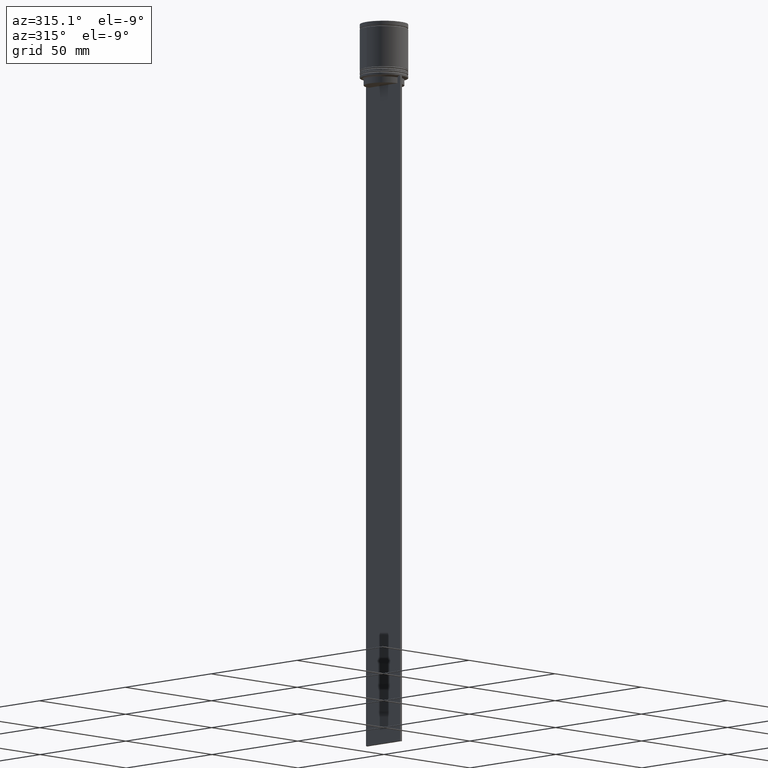
[diagram: clean part render]
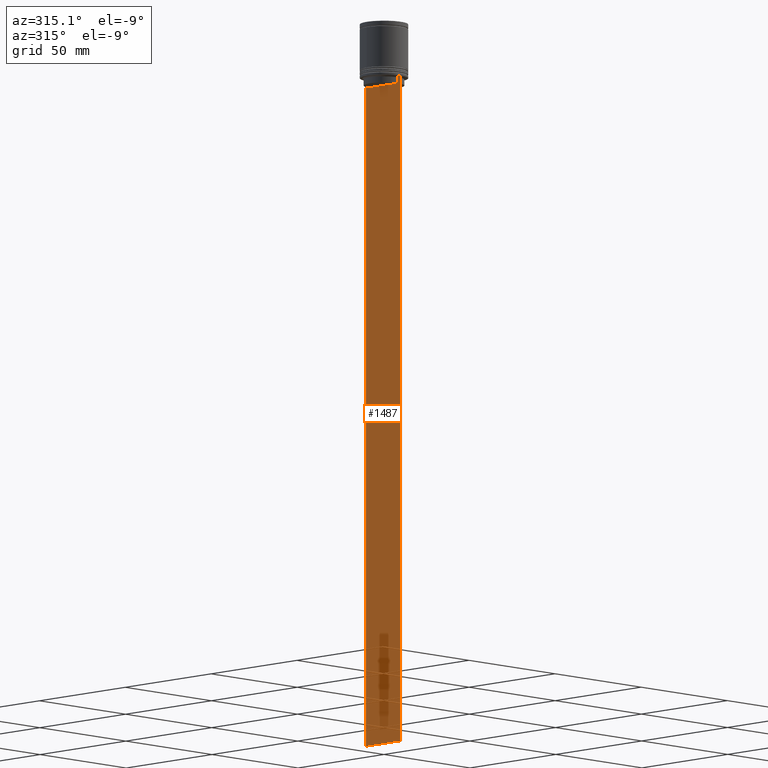
[diagram: same view with one face highlighted and labeled with its STEP entity id]
A machine part, auxiliary view. The second image highlights one B-rep face of the part: STEP entity #1487.
In plain terms, the highlighted planar face has unit normal (-1, 0, 0).
Its self-contained STEP definition (entity closure, byte-faithful):
#16 = DIRECTION ( 'NONE',  ( 0.000000000000000000, 0.000000000000000000, -1.000000000000000000 ) ) ;
#41 = LINE ( 'NONE', #1626, #1650 ) ;
#68 = CARTESIAN_POINT ( 'NONE',  ( -0.5000000000000000000, -10.00000000000000178, -22.50000000000000000 ) ) ;
#116 = CARTESIAN_POINT ( 'NONE',  ( -0.5000000000000000000, -8.885943956609226646, -22.50000000000000000 ) ) ;
#135 = ORIENTED_EDGE ( 'NONE', *, *, #1676, .F. ) ;
#172 = VECTOR ( 'NONE', #1026, 1000.000000000000000 ) ;
#179 = B_SPLINE_CURVE_WITH_KNOTS ( 'NONE', 3,
 ( #1228, #903, #1550, #116 ),
 .UNSPECIFIED., .F., .F.,
 ( 4, 4 ),
 ( 0.03898465126933125385, 0.03969388910599652709 ),
 .UNSPECIFIED. ) ;
#181 = ORIENTED_EDGE ( 'NONE', *, *, #1738, .F. ) ;
#218 = CARTESIAN_POINT ( 'NONE',  ( -0.5000000000000000000, 8.400000000000000355, -25.50000000000000000 ) ) ;
#220 = EDGE_CURVE ( 'NONE', #843, #1821, #1020, .T. ) ;
#223 = CARTESIAN_POINT ( 'NONE',  ( -0.5000000000000000000, -10.00000000000000178, -22.50000000000000000 ) ) ;
#234 = VECTOR ( 'NONE', #1152, 1000.000000000000000 ) ;
#236 = VECTOR ( 'NONE', #239, 1000.000000000000000 ) ;
#239 = DIRECTION ( 'NONE',  ( 0.000000000000000000, -1.000000000000000000, 0.000000000000000000 ) ) ;
#245 = EDGE_CURVE ( 'NONE', #1821, #939, #1907, .T. ) ;
#256 = ORIENTED_EDGE ( 'NONE', *, *, #1297, .F. ) ;
#268 = CARTESIAN_POINT ( 'NONE',  ( -0.5000000000000000000, -10.00000000000000178, -299.5000000000000568 ) ) ;
#286 = CARTESIAN_POINT ( 'NONE',  ( -0.5000000000000000000, 8.385105843100610912, -23.00000000000000000 ) ) ;
#301 = CARTESIAN_POINT ( 'NONE',  ( -0.5000000000000000000, -8.885943956609226646, -22.50000000000000000 ) ) ;
#321 = ORIENTED_EDGE ( 'NONE', *, *, #220, .F. ) ;
#359 = EDGE_CURVE ( 'NONE', #1977, #843, #502, .T. ) ;
#389 = EDGE_CURVE ( 'NONE', #1177, #1277, #666, .T. ) ;
#421 = CARTESIAN_POINT ( 'NONE',  ( -0.5000000000000000000, 8.385105843100610912, -23.00000000000000000 ) ) ;
#502 = LINE ( 'NONE', #223, #1408 ) ;
#504 = VECTOR ( 'NONE', #862, 1000.000000000000000 ) ;
#514 = VERTEX_POINT ( 'NONE', #743 ) ;
#522 = EDGE_LOOP ( 'NONE', ( #321, #1180, #135, #1094, #1077, #554, #1282, #256, #590, #181, #1442, #942 ) ) ;
#535 = LINE ( 'NONE', #731, #172 ) ;
#554 = ORIENTED_EDGE ( 'NONE', *, *, #1231, .F. ) ;
#575 = VECTOR ( 'NONE', #1571, 1000.000000000000000 ) ;
#579 = LINE ( 'NONE', #218, #236 ) ;
#590 = ORIENTED_EDGE ( 'NONE', *, *, #595, .F. ) ;
#595 = EDGE_CURVE ( 'NONE', #514, #1469, #179, .T. ) ;
#611 = PLANE ( 'NONE',  #1003 ) ;
#638 = DIRECTION ( 'NONE',  ( 0.000000000000000000, 0.000000000000000000, -1.000000000000000000 ) ) ;
#657 = CARTESIAN_POINT ( 'NONE',  ( -0.5000000000000000000, -10.00000000000000178, -2.475015605499213844 ) ) ;
#660 = CARTESIAN_POINT ( 'NONE',  ( -0.5000000000000000000, 8.552060201981374732, -22.83334167021640582 ) ) ;
#666 = LINE ( 'NONE', #68, #504 ) ;
#681 = CARTESIAN_POINT ( 'NONE',  ( -0.5000000000000000000, -9.887365675446622149, -22.50000000000000000 ) ) ;
#731 = CARTESIAN_POINT ( 'NONE',  ( -0.5000000000000000000, -8.385105843100610912, 0.000000000000000000 ) ) ;
#743 = CARTESIAN_POINT ( 'NONE',  ( -0.5000000000000000000, -8.385105843100610912, -23.00000000000000000 ) ) ;
#785 = CARTESIAN_POINT ( 'NONE',  ( -0.5000000000000000000, 8.385105843100610912, 0.000000000000000000 ) ) ;
#805 = CARTESIAN_POINT ( 'NONE',  ( -0.5000000000000000000, 8.719005771582342135, -22.66667453442325098 ) ) ;
#810 = LINE ( 'NONE', #1456, #1953 ) ;
#829 = LINE ( 'NONE', #657, #234 ) ;
#843 = VERTEX_POINT ( 'NONE', #1153 ) ;
#862 = DIRECTION ( 'NONE',  ( 0.000000000000000000, -1.000000000000000000, 0.000000000000000000 ) ) ;
#903 = CARTESIAN_POINT ( 'NONE',  ( -0.5000000000000000000, -8.552060194457768105, -22.83334167772666845 ) ) ;
#924 = DIRECTION ( 'NONE',  ( 0.000000000000000000, 0.000000000000000000, 1.000000000000000000 ) ) ;
#928 = VERTEX_POINT ( 'NONE', #1361 ) ;
#939 = VERTEX_POINT ( 'NONE', #1871 ) ;
#942 = ORIENTED_EDGE ( 'NONE', *, *, #245, .F. ) ;
#986 = DIRECTION ( 'NONE',  ( 0.000000000000000000, -1.000000000000000000, 0.000000000000000000 ) ) ;
#1003 = AXIS2_PLACEMENT_3D ( 'NONE', #1901, #1731, #924 ) ;
#1020 = B_SPLINE_CURVE_WITH_KNOTS ( 'NONE', 3,
 ( #1092, #805, #660, #286 ),
 .UNSPECIFIED., .F., .F.,
 ( 4, 4 ),
 ( 0.01511546479386905242, 0.01582316445439076874 ),
 .UNSPECIFIED. ) ;
#1026 = DIRECTION ( 'NONE',  ( -0.000000000000000000, -0.000000000000000000, 1.000000000000000000 ) ) ;
#1077 = ORIENTED_EDGE ( 'NONE', *, *, #1531, .F. ) ;
#1092 = CARTESIAN_POINT ( 'NONE',  ( -0.5000000000000000000, 8.885943956609226646, -22.50000000000000000 ) ) ;
#1094 = ORIENTED_EDGE ( 'NONE', *, *, #1222, .T. ) ;
#1124 = CARTESIAN_POINT ( 'NONE',  ( -0.5000000000000000000, 9.999999999999998224, -299.5000000000000568 ) ) ;
#1145 = CARTESIAN_POINT ( 'NONE',  ( -0.5000000000000000000, -10.00000000000000178, -22.50000000000000000 ) ) ;
#1152 = DIRECTION ( 'NONE',  ( 0.000000000000000000, 0.000000000000000000, -1.000000000000000000 ) ) ;
#1153 = CARTESIAN_POINT ( 'NONE',  ( -0.5000000000000000000, 8.885943956609226646, -22.50000000000000000 ) ) ;
#1177 = VERTEX_POINT ( 'NONE', #681 ) ;
#1180 = ORIENTED_EDGE ( 'NONE', *, *, #359, .F. ) ;
#1185 = VERTEX_POINT ( 'NONE', #1301 ) ;
#1222 = EDGE_CURVE ( 'NONE', #928, #1278, #1321, .T. ) ;
#1228 = CARTESIAN_POINT ( 'NONE',  ( -0.5000000000000000000, -8.385105843100610912, -23.00000000000000000 ) ) ;
#1231 = EDGE_CURVE ( 'NONE', #1277, #1367, #829, .T. ) ;
#1277 = VERTEX_POINT ( 'NONE', #1145 ) ;
#1278 = VERTEX_POINT ( 'NONE', #1124 ) ;
#1282 = ORIENTED_EDGE ( 'NONE', *, *, #389, .F. ) ;
#1286 = CARTESIAN_POINT ( 'NONE',  ( -0.5000000000000000000, 9.887365675446622149, -22.50000000000000000 ) ) ;
#1297 = EDGE_CURVE ( 'NONE', #1469, #1177, #810, .T. ) ;
#1301 = CARTESIAN_POINT ( 'NONE',  ( -0.5000000000000000000, -8.385105843100610912, -25.50000000000000000 ) ) ;
#1321 = LINE ( 'NONE', #1619, #1345 ) ;
#1336 = DIRECTION ( 'NONE',  ( 0.000000000000000000, -1.000000000000000000, 0.000000000000000000 ) ) ;
#1345 = VECTOR ( 'NONE', #16, 1000.000000000000000 ) ;
#1361 = CARTESIAN_POINT ( 'NONE',  ( -0.5000000000000000000, 9.999999999999994671, -22.50000000000000000 ) ) ;
#1367 = VERTEX_POINT ( 'NONE', #1532 ) ;
#1405 = EDGE_CURVE ( 'NONE', #939, #1185, #579, .T. ) ;
#1408 = VECTOR ( 'NONE', #1336, 1000.000000000000000 ) ;
#1423 = FACE_OUTER_BOUND ( 'NONE', #522, .T. ) ;
#1442 = ORIENTED_EDGE ( 'NONE', *, *, #1405, .F. ) ;
#1456 = CARTESIAN_POINT ( 'NONE',  ( -0.5000000000000000000, -10.00000000000000178, -22.50000000000000000 ) ) ;
#1469 = VERTEX_POINT ( 'NONE', #301 ) ;
#1487 = ADVANCED_FACE ( 'NONE', ( #1423 ), #611, .T. ) ;
#1531 = EDGE_CURVE ( 'NONE', #1367, #1278, #1562, .T. ) ;
#1532 = CARTESIAN_POINT ( 'NONE',  ( -0.5000000000000000000, -10.00000000000000178, -299.5000000000000568 ) ) ;
#1550 = CARTESIAN_POINT ( 'NONE',  ( -0.5000000000000000000, -8.719005764482783860, -22.66667454151159689 ) ) ;
#1562 = LINE ( 'NONE', #268, #575 ) ;
#1571 = DIRECTION ( 'NONE',  ( 0.000000000000000000, 1.000000000000000000, 0.000000000000000000 ) ) ;
#1619 = CARTESIAN_POINT ( 'NONE',  ( -0.5000000000000000000, 9.999999999999998224, -2.475015605499213844 ) ) ;
#1626 = CARTESIAN_POINT ( 'NONE',  ( -0.5000000000000000000, -10.00000000000000178, -22.50000000000000000 ) ) ;
#1650 = VECTOR ( 'NONE', #986, 1000.000000000000000 ) ;
#1676 = EDGE_CURVE ( 'NONE', #928, #1977, #41, .T. ) ;
#1731 = DIRECTION ( 'NONE',  ( -1.000000000000000000, 0.000000000000000000, 0.000000000000000000 ) ) ;
#1738 = EDGE_CURVE ( 'NONE', #1185, #514, #535, .T. ) ;
#1821 = VERTEX_POINT ( 'NONE', #421 ) ;
#1841 = VECTOR ( 'NONE', #638, 1000.000000000000000 ) ;
#1861 = DIRECTION ( 'NONE',  ( 0.000000000000000000, -1.000000000000000000, 0.000000000000000000 ) ) ;
#1871 = CARTESIAN_POINT ( 'NONE',  ( -0.5000000000000000000, 8.385105843100610912, -25.50000000000000000 ) ) ;
#1901 = CARTESIAN_POINT ( 'NONE',  ( -0.5000000000000000000, -10.00000000000000178, -2.475015605499213844 ) ) ;
#1907 = LINE ( 'NONE', #785, #1841 ) ;
#1953 = VECTOR ( 'NONE', #1861, 1000.000000000000000 ) ;
#1977 = VERTEX_POINT ( 'NONE', #1286 ) ;